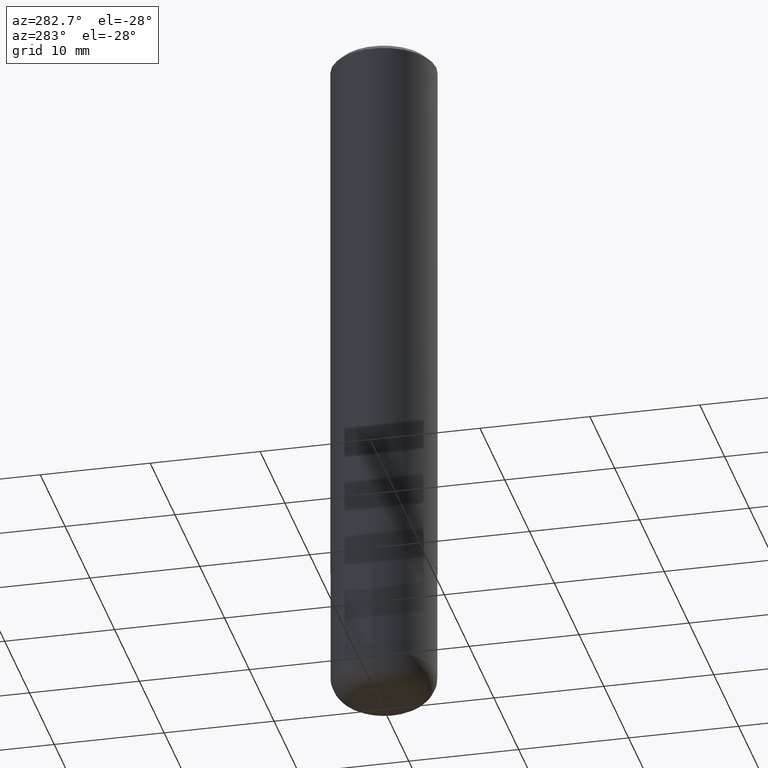
[diagram: clean part render]
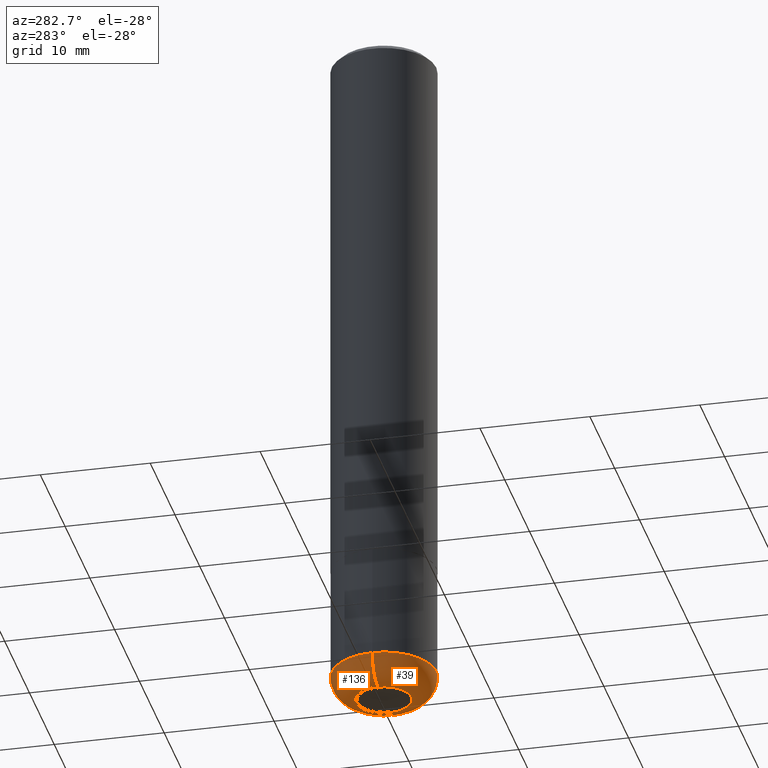
[diagram: same view with one multi-face feature highlighted, each face labeled with its STEP entity id]
A machine part, auxiliary view. The highlighted faces form ONE feature: a constant-radius fillet chain: 2 tangent blend faces with common blend radius 2.286 mm. The faces share edges in the B-rep.
Their STEP definitions:
[1] entity #39 (Torus):
#13 = DIRECTION ( 'NONE',  ( 1.000000000000000000, -6.982962677686261189E-15, 0.000000000000000000 ) ) ;
#21 = CARTESIAN_POINT ( 'NONE',  ( 0.09750000000000001721, -9.095308887686393314E-15, -2.410000000000000142 ) ) ;
#39 = ADVANCED_FACE ( 'NONE', ( #287 ), #235, .T. ) ;
#40 = DIRECTION ( 'NONE',  ( -2.445468806185136597E-29, 3.491481338843145583E-15, 1.000000000000000000 ) ) ;
#43 = AXIS2_PLACEMENT_3D ( 'NONE', #21, #53, #177 ) ;
#53 = DIRECTION ( 'NONE',  ( -6.982962677686266711E-15, -1.000000000000000000, 3.491481338843145583E-15 ) ) ;
#56 = AXIS2_PLACEMENT_3D ( 'NONE', #85, #376, #272 ) ;
#74 = ORIENTED_EDGE ( 'NONE', *, *, #398, .T. ) ;
#79 = CARTESIAN_POINT ( 'NONE',  ( 0.09750000000000003109, -9.409542208182275000E-15, -2.500000000000000000 ) ) ;
#85 = CARTESIAN_POINT ( 'NONE',  ( 6.113672015462842613E-29, -8.728703347107864943E-15, -2.500000000000000000 ) ) ;
#94 = ORIENTED_EDGE ( 'NONE', *, *, #411, .F. ) ;
#95 = DIRECTION ( 'NONE',  ( 1.000000000000000000, -6.982962677686265133E-15, 4.883557194083112340E-29 ) ) ;
#107 = AXIS2_PLACEMENT_3D ( 'NONE', #257, #392, #95 ) ;
#118 = CARTESIAN_POINT ( 'NONE',  ( -0.09750000000000001721, -7.721690859245884565E-15, -2.410000000000000142 ) ) ;
#143 = CARTESIAN_POINT ( 'NONE',  ( 0.1874999999999999722, -9.723775528678158264E-15, -2.410000000000000142 ) ) ;
#174 = CIRCLE ( 'NONE', #43, 0.08999999999999992728 ) ;
#177 = DIRECTION ( 'NONE',  ( 1.000000000000000000, -6.982962677686273810E-15, 0.000000000000000000 ) ) ;
#192 = CARTESIAN_POINT ( 'NONE',  ( -0.09750000000000003109, -7.559063288401780041E-15, -2.500000000000000000 ) ) ;
#193 = VERTEX_POINT ( 'NONE', #79 ) ;
#235 = TOROIDAL_SURFACE ( 'NONE', #107, 0.09750000000000001721, 0.08999999999999992728 ) ;
#237 = CIRCLE ( 'NONE', #271, 0.1875000000000000278 ) ;
#243 = AXIS2_PLACEMENT_3D ( 'NONE', #118, #274, #406 ) ;
#249 = VERTEX_POINT ( 'NONE', #332 ) ;
#257 = CARTESIAN_POINT ( 'NONE',  ( 5.893579822906179826E-29, -8.414470026611981678E-15, -2.410000000000000142 ) ) ;
#258 = EDGE_CURVE ( 'NONE', #249, #389, #237, .T. ) ;
#271 = AXIS2_PLACEMENT_3D ( 'NONE', #369, #40, #13 ) ;
#272 = DIRECTION ( 'NONE',  ( 1.000000000000000000, -6.982962677686265922E-15, 0.000000000000000000 ) ) ;
#274 = DIRECTION ( 'NONE',  ( 7.105427357601001859E-15, 1.000000000000000000, -3.491481338843145583E-15 ) ) ;
#283 = ORIENTED_EDGE ( 'NONE', *, *, #330, .T. ) ;
#287 = FACE_OUTER_BOUND ( 'NONE', #335, .T. ) ;
#288 = VERTEX_POINT ( 'NONE', #192 ) ;
#316 = ORIENTED_EDGE ( 'NONE', *, *, #258, .F. ) ;
#322 = CIRCLE ( 'NONE', #243, 0.08999999999999992728 ) ;
#330 = EDGE_CURVE ( 'NONE', #288, #193, #365, .T. ) ;
#332 = CARTESIAN_POINT ( 'NONE',  ( -0.1874999999999999722, -7.082202397061793830E-15, -2.410000000000000142 ) ) ;
#335 = EDGE_LOOP ( 'NONE', ( #94, #283, #74, #316 ) ) ;
#365 = CIRCLE ( 'NONE', #56, 0.09750000000000003109 ) ;
#369 = CARTESIAN_POINT ( 'NONE',  ( 5.893579822906179826E-29, -8.414470026611981678E-15, -2.410000000000000142 ) ) ;
#376 = DIRECTION ( 'NONE',  ( -2.445468806185136597E-29, 3.491481338843145583E-15, 1.000000000000000000 ) ) ;
#389 = VERTEX_POINT ( 'NONE', #143 ) ;
#392 = DIRECTION ( 'NONE',  ( -2.445468806185136597E-29, 3.491481338843145583E-15, 1.000000000000000000 ) ) ;
#398 = EDGE_CURVE ( 'NONE', #193, #389, #174, .T. ) ;
#406 = DIRECTION ( 'NONE',  ( -1.000000000000000000, 7.105427357600996337E-15, 0.000000000000000000 ) ) ;
#411 = EDGE_CURVE ( 'NONE', #288, #249, #322, .T. ) ;
[2] entity #136 (Torus):
#4 = ORIENTED_EDGE ( 'NONE', *, *, #284, .T. ) ;
#8 = DIRECTION ( 'NONE',  ( -2.445468806185136597E-29, 3.491481338843145583E-15, 1.000000000000000000 ) ) ;
#9 = CIRCLE ( 'NONE', #328, 0.09750000000000003109 ) ;
#11 = AXIS2_PLACEMENT_3D ( 'NONE', #102, #327, #169 ) ;
#12 = DIRECTION ( 'NONE',  ( 1.000000000000000000, -6.982962677686265133E-15, 4.883557194083112340E-29 ) ) ;
#14 = DIRECTION ( 'NONE',  ( 1.000000000000000000, -6.982962677686265922E-15, 0.000000000000000000 ) ) ;
#21 = CARTESIAN_POINT ( 'NONE',  ( 0.09750000000000001721, -9.095308887686393314E-15, -2.410000000000000142 ) ) ;
#43 = AXIS2_PLACEMENT_3D ( 'NONE', #21, #53, #177 ) ;
#48 = FACE_OUTER_BOUND ( 'NONE', #63, .T. ) ;
#53 = DIRECTION ( 'NONE',  ( -6.982962677686266711E-15, -1.000000000000000000, 3.491481338843145583E-15 ) ) ;
#63 = EDGE_LOOP ( 'NONE', ( #4, #157, #317, #232 ) ) ;
#79 = CARTESIAN_POINT ( 'NONE',  ( 0.09750000000000003109, -9.409542208182275000E-15, -2.500000000000000000 ) ) ;
#82 = CIRCLE ( 'NONE', #11, 0.1875000000000000278 ) ;
#99 = AXIS2_PLACEMENT_3D ( 'NONE', #399, #106, #12 ) ;
#102 = CARTESIAN_POINT ( 'NONE',  ( 5.893579822906179826E-29, -8.414470026611981678E-15, -2.410000000000000142 ) ) ;
#106 = DIRECTION ( 'NONE',  ( -2.445468806185136597E-29, 3.491481338843145583E-15, 1.000000000000000000 ) ) ;
#118 = CARTESIAN_POINT ( 'NONE',  ( -0.09750000000000001721, -7.721690859245884565E-15, -2.410000000000000142 ) ) ;
#136 = ADVANCED_FACE ( 'NONE', ( #48 ), #242, .T. ) ;
#143 = CARTESIAN_POINT ( 'NONE',  ( 0.1874999999999999722, -9.723775528678158264E-15, -2.410000000000000142 ) ) ;
#157 = ORIENTED_EDGE ( 'NONE', *, *, #411, .T. ) ;
#169 = DIRECTION ( 'NONE',  ( 1.000000000000000000, -6.982962677686261189E-15, 0.000000000000000000 ) ) ;
#174 = CIRCLE ( 'NONE', #43, 0.08999999999999992728 ) ;
#177 = DIRECTION ( 'NONE',  ( 1.000000000000000000, -6.982962677686273810E-15, 0.000000000000000000 ) ) ;
#192 = CARTESIAN_POINT ( 'NONE',  ( -0.09750000000000003109, -7.559063288401780041E-15, -2.500000000000000000 ) ) ;
#193 = VERTEX_POINT ( 'NONE', #79 ) ;
#198 = CARTESIAN_POINT ( 'NONE',  ( 6.113672015462842613E-29, -8.728703347107864943E-15, -2.500000000000000000 ) ) ;
#232 = ORIENTED_EDGE ( 'NONE', *, *, #398, .F. ) ;
#242 = TOROIDAL_SURFACE ( 'NONE', #99, 0.09750000000000001721, 0.08999999999999992728 ) ;
#243 = AXIS2_PLACEMENT_3D ( 'NONE', #118, #274, #406 ) ;
#249 = VERTEX_POINT ( 'NONE', #332 ) ;
#253 = EDGE_CURVE ( 'NONE', #389, #249, #82, .T. ) ;
#274 = DIRECTION ( 'NONE',  ( 7.105427357601001859E-15, 1.000000000000000000, -3.491481338843145583E-15 ) ) ;
#284 = EDGE_CURVE ( 'NONE', #193, #288, #9, .T. ) ;
#288 = VERTEX_POINT ( 'NONE', #192 ) ;
#317 = ORIENTED_EDGE ( 'NONE', *, *, #253, .F. ) ;
#322 = CIRCLE ( 'NONE', #243, 0.08999999999999992728 ) ;
#327 = DIRECTION ( 'NONE',  ( -2.445468806185136597E-29, 3.491481338843145583E-15, 1.000000000000000000 ) ) ;
#328 = AXIS2_PLACEMENT_3D ( 'NONE', #198, #8, #14 ) ;
#332 = CARTESIAN_POINT ( 'NONE',  ( -0.1874999999999999722, -7.082202397061793830E-15, -2.410000000000000142 ) ) ;
#389 = VERTEX_POINT ( 'NONE', #143 ) ;
#398 = EDGE_CURVE ( 'NONE', #193, #389, #174, .T. ) ;
#399 = CARTESIAN_POINT ( 'NONE',  ( 5.893579822906179826E-29, -8.414470026611981678E-15, -2.410000000000000142 ) ) ;
#406 = DIRECTION ( 'NONE',  ( -1.000000000000000000, 7.105427357600996337E-15, 0.000000000000000000 ) ) ;
#411 = EDGE_CURVE ( 'NONE', #288, #249, #322, .T. ) ;